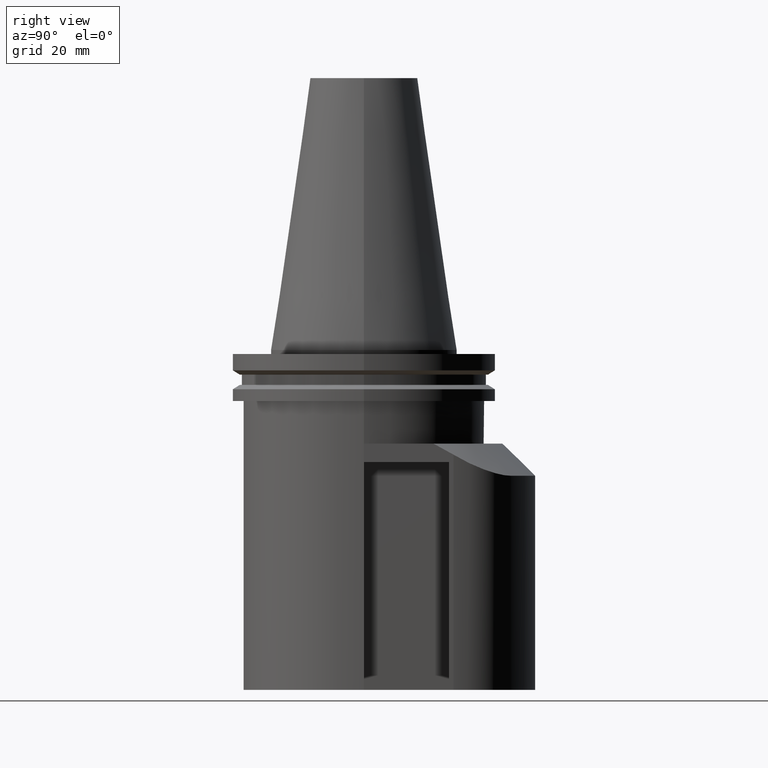
[diagram: clean part render]
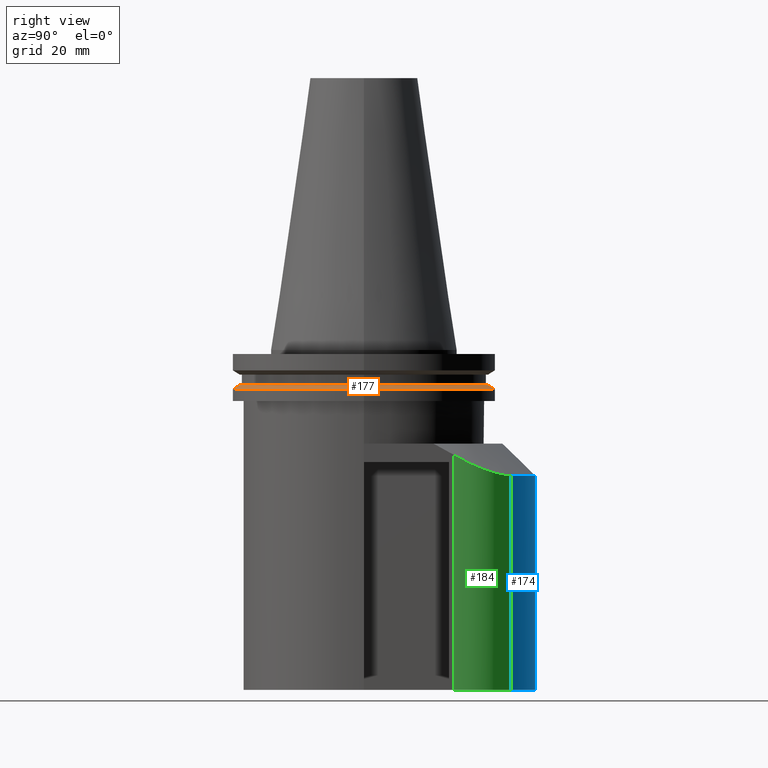
[diagram: same view with three faces highlighted in distinct colors, each labeled with its STEP entity id]
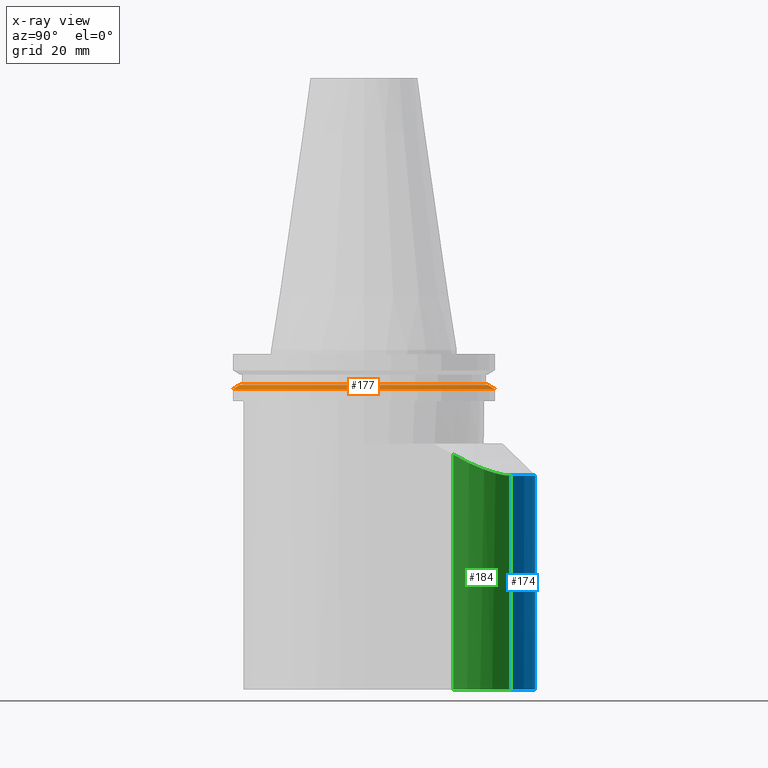
[diagram: x-ray of the same camera — body ghosted, the three highlighted faces saturated]
A machine part, right view with three faces highlighted in distinct colors.
The next image is the same camera in x-ray (body ghosted, the three faces saturated) — at least one of them is partly hidden behind the body in this view.
Their STEP definitions:

[orange] entity #177 — the highlighted conical surface has half-angle 60 deg.
#177=ADVANCED_FACE('Unnamed[1]',(#413,#414),#415,.T.);
#233=EDGE_CURVE('Unnamed[1]',#487,#487,#488,.T.);
#245=EDGE_CURVE('Unnamed[1]',#502,#502,#503,.T.);
#413=FACE_BOUND('',#730,.T.);
#414=FACE_BOUND('',#731,.T.);
#415=CONICAL_SURFACE('',#732,47.821518775,1.04719755103024);
#487=VERTEX_POINT('',#874);
#488=CIRCLE('',#875,46.43053755);
#502=VERTEX_POINT('',#894);
#503=CIRCLE('',#895,49.2125);
#730=EDGE_LOOP('',(#1077));
#731=EDGE_LOOP('',(#1078));
#732=AXIS2_PLACEMENT_3D('',#1079,#1080,#1081);
#874=CARTESIAN_POINT('',(46.4305375499996,-9.32762109203878E-015,-13.0400000000002));
#875=AXIS2_PLACEMENT_3D('',#1166,#1167,#1168);
#894=CARTESIAN_POINT('',(49.2124999999996,-9.93700865318874E-015,-14.6461667700002));
#895=AXIS2_PLACEMENT_3D('',#1183,#1184,#1185);
#1077=ORIENTED_EDGE('',*,*,#245,.F.);
#1078=ORIENTED_EDGE('',*,*,#233,.T.);
#1079=CARTESIAN_POINT('',(-4.14057405876283E-013,-8.47644387888432E-016,-13.843083385));
#1080=DIRECTION('',(-3.41757090727388E-015,-6.1232339957367E-017,-1.0));
#1081=DIRECTION('',(1.0,-1.83697019872103E-016,-3.41757090727388E-015));
#1166=CARTESIAN_POINT('',(-4.11312811463592E-013,-7.98469713043998E-016,-13.04));
#1167=DIRECTION('',(-3.41757090727388E-015,-6.1232339957367E-017,-1.0));
#1168=DIRECTION('',(1.0,-1.83697019872103E-016,-3.41757090727388E-015));
#1183=CARTESIAN_POINT('',(-4.16802000288974E-013,-8.96819062732866E-016,-14.64616677));
#1184=DIRECTION('',(-3.41757090727388E-015,-6.1232339957367E-017,-1.0));
#1185=DIRECTION('',(1.0,-1.83697019872103E-016,-3.41757090727388E-015));

[blue] entity #174 — the highlighted cylindrical surface (partial cylindrical patch) has radius 64 mm, axis along (-0, -0, -1).
#142=EDGE_CURVE('Unnamed[1]',#360,#361,#362,.T.);
#174=ADVANCED_FACE('Unnamed[1]',(#409),#410,.T.);
#181=EDGE_CURVE('Unnamed[1]',#294,#420,#421,.T.);
#257=EDGE_CURVE('Unnamed[1]',#337,#420,#519,.T.);
#267=EDGE_CURVE('Unnamed[1]',#360,#337,#531,.T.);
#271=EDGE_CURVE('Unnamed[1]',#361,#294,#535,.T.);
#294=VERTEX_POINT('',#550);
#337=VERTEX_POINT('',#629);
#360=VERTEX_POINT('',#662);
#361=VERTEX_POINT('',#663);
#362=ELLIPSE('',#664,90.5096679918774,63.9999999999996);
#409=FACE_OUTER_BOUND('',#725,.T.);
#410=CYLINDRICAL_SURFACE('',#726,63.9999999999996);
#420=VERTEX_POINT('',#739);
#421=CIRCLE('',#740,63.9999999999996);
#519=LINE('',#917,#918);
#531=CIRCLE('',#935,63.9999999999996);
#535=LINE('',#941,#942);
#550=CARTESIAN_POINT('',(-32.8205128205145,54.9437342942641,-47.0000000000017));
#629=CARTESIAN_POINT('',(32.8205128205123,54.9437342942653,-127.0));
#662=CARTESIAN_POINT('',(-20.0000000000007,60.7947366142823,-127.0));
#663=CARTESIAN_POINT('',(-32.8205128205133,54.9437342942661,-114.179487179487));
#664=AXIS2_PLACEMENT_3D('',#1008,#1009,#1010);
#725=EDGE_LOOP('',(#1068,#1069,#1070,#1071,#1072));
#726=AXIS2_PLACEMENT_3D('',#1073,#1074,#1075);
#739=CARTESIAN_POINT('',(32.820512820514,54.9437342942631,-47.0000000000014));
#740=AXIS2_PLACEMENT_3D('',#1085,#1086,#1087);
#917=CARTESIAN_POINT('',(32.8205128205126,54.9437342942653,-279.999999999998));
#918=VECTOR('',#1202,1.0);
#935=AXIS2_PLACEMENT_3D('',#1225,#1226,#1227);
#941=CARTESIAN_POINT('',(-32.8205128205132,54.9437342942661,-279.999999999998));
#942=VECTOR('',#1231,1.0);
#1008=CARTESIAN_POINT('',(-8.69130610202E-013,-9.00115397373287E-015,-147.0));
#1009=DIRECTION('',(0.707106781186549,-8.65956056235496E-017,0.707106781186546));
#1010=DIRECTION('',(0.707106781186546,-1.73191211247098E-016,-0.707106781186549));
#1068=ORIENTED_EDGE('',*,*,#142,.T.);
#1069=ORIENTED_EDGE('',*,*,#271,.T.);
#1070=ORIENTED_EDGE('',*,*,#181,.T.);
#1071=ORIENTED_EDGE('',*,*,#257,.F.);
#1072=ORIENTED_EDGE('',*,*,#267,.F.);
#1073=CARTESIAN_POINT('',(-6.64076355765568E-013,-5.32721357629087E-015,-87.0));
#1074=DIRECTION('',(-3.41757090727388E-015,-6.1232339957367E-017,-1.0));
#1075=DIRECTION('',(1.0,-1.83697019872103E-016,-3.41757090727388E-015));
#1085=CARTESIAN_POINT('',(-5.27373519474612E-013,-2.87791997799617E-015,-46.9999999999997));
#1086=DIRECTION('',(-3.41757090727388E-015,-6.1232339957367E-017,-1.0));
#1087=DIRECTION('',(1.0,-1.83697019872103E-016,-3.41757090727388E-015));
#1202=DIRECTION('',(-1.22464679914735E-016,6.12323399573677E-017,1.0));
#1225=CARTESIAN_POINT('',(-8.00779192056524E-013,-7.77650717458557E-015,-127.0));
#1226=DIRECTION('',(-3.41757090727388E-015,-6.1232339957367E-017,-1.0));
#1227=DIRECTION('',(1.0,-1.83697019872103E-016,-3.41757090727388E-015));
#1231=DIRECTION('',(-1.22464679914735E-016,6.12323399573677E-017,1.0));

[green] entity #184 — the highlighted cylindrical surface (partial cylindrical patch) has radius 25 mm, axis along (-0, 0, 1).
#127=EDGE_CURVE('Unnamed[1]',#337,#338,#339,.T.);
#184=ADVANCED_FACE('Unnamed[1]',(#424),#425,.T.);
#217=EDGE_CURVE('Unnamed[1]',#338,#466,#467,.T.);
#224=EDGE_CURVE('Unnamed[1]',#466,#420,#476,.T.);
#257=EDGE_CURVE('Unnamed[1]',#337,#420,#519,.T.);
#337=VERTEX_POINT('',#629);
#338=VERTEX_POINT('',#630);
#339=CIRCLE('',#631,25.0);
#420=VERTEX_POINT('',#739);
#424=FACE_OUTER_BOUND('',#744,.T.);
#425=CYLINDRICAL_SURFACE('',#745,25.0);
#466=VERTEX_POINT('',#815);
#467=LINE('',#816,#817);
#476=B_SPLINE_CURVE_WITH_KNOTS('',3,(#838,#839,#840,#841,#842,#843,#844,#845,#846,#847,#848,#849,#850,#851,#852,#853,#854,#855,#856,#857,#858,#859),.UNSPECIFIED.,.F.,.F.,(4,2,2,2,2,2,2,2,2,2,4),(4.78513696568953,9.57027393137906,14.3554108970686,16.7479793799133,19.1405478627581,23.0545111813752,26.9684744999923,30.8824378186094,32.8394194779179,34.7964011372265,36.7533827965351),.UNSPECIFIED.);
#519=LINE('',#917,#918);
#629=CARTESIAN_POINT('',(32.8205128205123,54.9437342942653,-127.0));
#630=CARTESIAN_POINT('',(44.9999999999993,33.4813380855679,-127.0));
#631=AXIS2_PLACEMENT_3D('',#990,#991,#992);
#739=CARTESIAN_POINT('',(32.820512820514,54.9437342942631,-47.0000000000014));
#744=EDGE_LOOP('',(#1089,#1090,#1091,#1092));
#745=AXIS2_PLACEMENT_3D('',#1093,#1094,#1095);
#815=CARTESIAN_POINT('',(44.9999999999993,33.4813380855679,-39.0892146495216));
#816=CARTESIAN_POINT('',(44.9999999999993,33.4813380855679,-279.999999999998));
#817=VECTOR('',#1144,1.0);
#838=CARTESIAN_POINT('',(44.7506740801485,29.9593879754401,-36.85339133695));
#839=CARTESIAN_POINT('',(44.9485642711991,31.3500708502194,-37.7914887530079));
#840=CARTESIAN_POINT('',(45.0346532081906,32.8069630561023,-38.7042644691877));
#841=CARTESIAN_POINT('',(44.9394671376511,35.7642203919057,-40.4211063875237));
#842=CARTESIAN_POINT('',(44.7579416504303,37.2661631987091,-41.2262265239294));
#843=CARTESIAN_POINT('',(44.2812305284075,39.4806703748321,-42.3221207402299));
#844=CARTESIAN_POINT('',(44.0885797422409,40.2124681014399,-42.6689559132451));
#845=CARTESIAN_POINT('',(43.6394601463735,41.6510204096553,-43.3220426404162));
#846=CARTESIAN_POINT('',(43.3829828617945,42.3577719647247,-43.6282950330199));
#847=CARTESIAN_POINT('',(42.6317207682647,44.1720053996778,-44.3788358865799));
#848=CARTESIAN_POINT('',(42.0565963664581,45.324015782221,-44.8177252085515));
#849=CARTESIAN_POINT('',(40.6868228858472,47.5809060631334,-45.5920731702515));
#850=CARTESIAN_POINT('',(39.8920686133896,48.685705337654,-45.9275807062343));
#851=CARTESIAN_POINT('',(38.1164426533106,50.7631689996108,-46.4662737210921));
#852=CARTESIAN_POINT('',(37.1341468154296,51.7373387144877,-46.6698856350651));
#853=CARTESIAN_POINT('',(35.5682079417727,53.0541773787051,-46.870043592238));
#854=CARTESIAN_POINT('',(35.0310047670364,53.4693131752246,-46.9193988511503));
#855=CARTESIAN_POINT('',(33.9371677848992,54.2468288485375,-46.9843777844012));
#856=CARTESIAN_POINT('',(33.380533030448,54.6092075148955,-47.0000000000013));
#857=CARTESIAN_POINT('',(32.2604926105751,55.2782610736335,-47.0000000000013));
#858=CARTESIAN_POINT('',(31.6775533839529,55.5966042936953,-46.9843777844012));
#859=CARTESIAN_POINT('',(31.0759928747085,55.8938877361406,-46.9518883177758));
#917=CARTESIAN_POINT('',(32.8205128205126,54.9437342942653,-279.999999999998));
#918=VECTOR('',#1202,1.0);
#990=CARTESIAN_POINT('',(19.9999999999993,33.4813380855678,-127.0));
#991=DIRECTION('',(-8.75931951708657E-015,-6.12323399573661E-017,-1.0));
#992=DIRECTION('',(3.06161699786838E-016,1.0,-6.12323399573687E-017));
#1089=ORIENTED_EDGE('',*,*,#127,.F.);
#1090=ORIENTED_EDGE('',*,*,#257,.T.);
#1091=ORIENTED_EDGE('',*,*,#224,.F.);
#1092=ORIENTED_EDGE('',*,*,#217,.F.);
#1093=CARTESIAN_POINT('',(19.9999999999993,33.4813380855678,-279.999999999998));
#1094=DIRECTION('',(-1.22464679914735E-016,6.12323399573677E-017,1.0));
#1095=DIRECTION('',(3.06161699786838E-016,1.0,-6.12323399573677E-017));
#1144=DIRECTION('',(-1.22464679914735E-016,6.12323399573677E-017,1.0));
#1202=DIRECTION('',(-1.22464679914735E-016,6.12323399573677E-017,1.0));